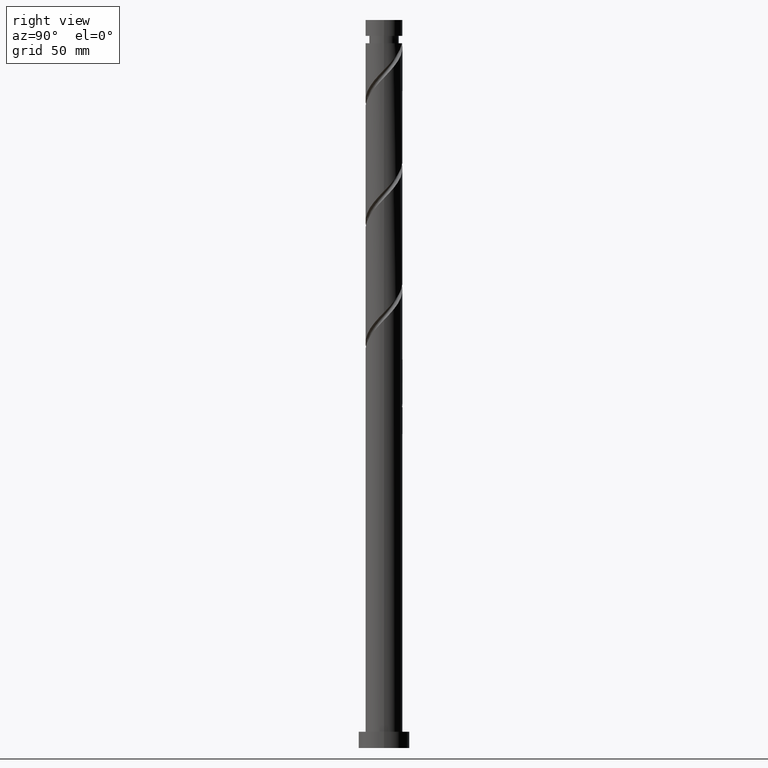
[diagram: clean part render]
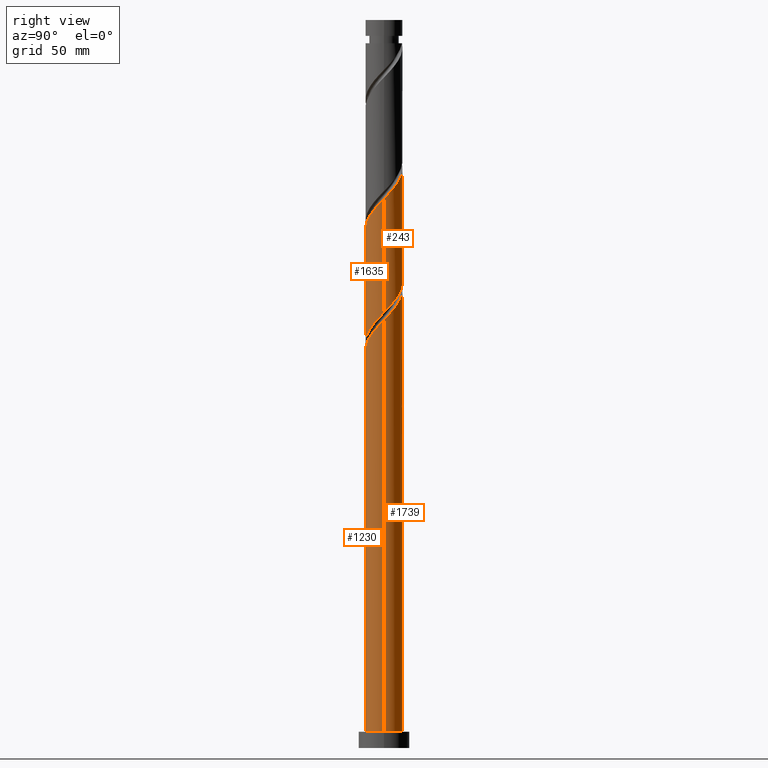
[diagram: same view with one multi-face feature highlighted, each face labeled with its STEP entity id]
A machine part, right view. The highlighted faces form ONE feature: a constant-radius fillet chain: 4 tangent blend faces with common blend radius 8 mm. The faces share edges in the B-rep.
Their STEP definitions:
[1] entity #1739 (Cylinder):
#6 = CARTESIAN_POINT ( 'NONE',  ( 7.840000000000014069, 1.591979899370592921, 186.8362030128767515 ) ) ;
#52 = CARTESIAN_POINT ( 'NONE',  ( -3.296629761746310283, 7.289185977457886878, 149.3362030128767799 ) ) ;
#70 = CYLINDRICAL_SURFACE ( 'NONE', #1546, 8.000000000000000000 ) ;
#84 = CARTESIAN_POINT ( 'NONE',  ( -7.660626944476033096, 2.475335748187463381, 159.6487030128768083 ) ) ;
#123 = CARTESIAN_POINT ( 'NONE',  ( -2.475335748187466933, 7.660626944476047306, 200.8987030128768083 ) ) ;
#126 = ORIENTED_EDGE ( 'NONE', *, *, #553, .F. ) ;
#133 = CARTESIAN_POINT ( 'NONE',  ( 8.000000000000012434, -2.358272216401145902E-15, 185.1616859349707056 ) ) ;
#164 = CARTESIAN_POINT ( 'NONE',  ( -6.711618193336564175, 4.445972725462997488, 154.0237030128768083 ) ) ;
#190 = CARTESIAN_POINT ( 'NONE',  ( -5.554021909376833932, 5.827978455592415230, 152.1487030128767515 ) ) ;
#206 = CARTESIAN_POINT ( 'NONE',  ( -7.289185977457873555, 3.296629761746308063, 158.7112030128767799 ) ) ;
#215 = LINE ( 'NONE', #1123, #1804 ) ;
#250 = CARTESIAN_POINT ( 'NONE',  ( -3.643500041788255039, 7.122142054571012793, 153.0862030128768083 ) ) ;
#263 = CARTESIAN_POINT ( 'NONE',  ( -8.000000000000012434, 0.09626317733113058661, 211.3113232467456726 ) ) ;
#304 = CARTESIAN_POINT ( 'NONE',  ( 0.000000000000000000, 0.000000000000000000, 7.000000000000000000 ) ) ;
#305 = CARTESIAN_POINT ( 'NONE',  ( -8.000000000000012434, 1.149284561157520631E-15, 158.9116859349707340 ) ) ;
#310 = CARTESIAN_POINT ( 'NONE',  ( 8.000000000000000000, 9.797174393178825657E-16, 7.000000000000000000 ) ) ;
#330 = CARTESIAN_POINT ( 'NONE',  ( 0.000000000000000000, 0.000000000000000000, 147.4612030128767799 ) ) ;
#341 = DIRECTION ( 'NONE',  ( 0.000000000000000000, -0.000000000000000000, -1.000000000000000000 ) ) ;
#345 = EDGE_CURVE ( 'NONE', #1927, #983, #1616, .T. ) ;
#346 = CARTESIAN_POINT ( 'NONE',  ( -7.122142054571021674, 3.643500041788263033, 154.9612030128767799 ) ) ;
#413 = CARTESIAN_POINT ( 'NONE',  ( -0.7086240505537212409, 8.019373055523983496, 199.0237030128768652 ) ) ;
#445 = CARTESIAN_POINT ( 'NONE',  ( 2.841027358113531243, 7.532665915805483614, 195.2737030128768652 ) ) ;
#451 = EDGE_CURVE ( 'NONE', #1294, #1927, #215, .T. ) ;
#454 = CARTESIAN_POINT ( 'NONE',  ( 6.372861733016071284, 4.835972842340993338, 190.5862030128767231 ) ) ;
#466 = CARTESIAN_POINT ( 'NONE',  ( -7.975994315582289218, 1.093621015931131701, 157.7737030128768367 ) ) ;
#475 = CARTESIAN_POINT ( 'NONE',  ( -7.754330115693886860, 1.967324187022329918, 156.8362030128767231 ) ) ;
#510 = CARTESIAN_POINT ( 'NONE',  ( 0.000000000000000000, 0.000000000000000000, 315.0000000000000000 ) ) ;
#526 = CARTESIAN_POINT ( 'NONE',  ( -7.999999999999998224, 0.8040302522073711211, 161.4224490118191397 ) ) ;
#546 = LINE ( 'NONE', #1290, #874 ) ;
#553 = EDGE_CURVE ( 'NONE', #1450, #1671, #1539, .T. ) ;
#563 = CARTESIAN_POINT ( 'NONE',  ( -7.532665915805484502, 2.841027358113529466, 208.3987030128768652 ) ) ;
#584 = CARTESIAN_POINT ( 'NONE',  ( -3.296629761746310283, 7.289185977457886878, 201.8362030128767799 ) ) ;
#606 = CARTESIAN_POINT ( 'NONE',  ( 7.660626944476047306, 2.475335748187466489, 187.7737030128768367 ) ) ;
#626 = EDGE_CURVE ( 'NONE', #1054, #1450, #546, .T. ) ;
#627 = CARTESIAN_POINT ( 'NONE',  ( -4.835972842340994227, 6.372861733016071284, 151.2112030128767515 ) ) ;
#628 = VERTEX_POINT ( 'NONE', #1709 ) ;
#630 = CARTESIAN_POINT ( 'NONE',  ( 8.000000000000012434, -2.358272216401145902E-15, 185.1616859349706772 ) ) ;
#651 = CARTESIAN_POINT ( 'NONE',  ( -4.117923775305157186, 6.917745010439727338, 150.2737030128768083 ) ) ;
#680 = ORIENTED_EDGE ( 'NONE', *, *, #1423, .T. ) ;
#687 = DIRECTION ( 'NONE',  ( 0.000000000000000000, 0.000000000000000000, 1.000000000000000000 ) ) ;
#699 = CARTESIAN_POINT ( 'NONE',  ( 1.591979899370595142, 7.839999999999999858, 147.4612030128767799 ) ) ;
#714 = CARTESIAN_POINT ( 'NONE',  ( 7.289185977457886878, 3.296629761746309839, 188.7112030128767515 ) ) ;
#722 = EDGE_LOOP ( 'NONE', ( #1632, #1613, #750, #1263, #997, #680, #126, #1158 ) ) ;
#727 = CARTESIAN_POINT ( 'NONE',  ( -8.000000000000012434, 1.149284561157520631E-15, 211.4116859349707624 ) ) ;
#730 = VERTEX_POINT ( 'NONE', #305 ) ;
#750 = ORIENTED_EDGE ( 'NONE', *, *, #345, .T. ) ;
#811 = CARTESIAN_POINT ( 'NONE',  ( 1.591979899370595364, 7.839999999999999858, 147.4612030128767799 ) ) ;
#819 = DIRECTION ( 'NONE',  ( -0.000000000000000000, -0.000000000000000000, -1.000000000000000000 ) ) ;
#858 = CARTESIAN_POINT ( 'NONE',  ( -5.554021909376833932, 5.827978455592415230, 204.6487030128767799 ) ) ;
#874 = VECTOR ( 'NONE', #1104, 1000.000000000000000 ) ;
#883 = CARTESIAN_POINT ( 'NONE',  ( 1.093621015931133478, 7.975994315582287442, 197.1487030128768083 ) ) ;
#907 = CIRCLE ( 'NONE', #1521, 8.000000000000000000 ) ;
#928 = CARTESIAN_POINT ( 'NONE',  ( -7.999999999999998224, 9.403237318561601103E-16, 162.2607200907828258 ) ) ;
#935 = CARTESIAN_POINT ( 'NONE',  ( -7.532665915805484502, 2.841027358113529466, 155.8987030128768367 ) ) ;
#946 = DIRECTION ( 'NONE',  ( -1.000000000000000000, 0.000000000000000000, 0.000000000000000000 ) ) ;
#956 = CARTESIAN_POINT ( 'NONE',  ( -8.000000000000000000, 0.000000000000000000, 315.0000000000000000 ) ) ;
#972 = CARTESIAN_POINT ( 'NONE',  ( -6.372861733016058849, 4.835972842340985345, 156.8362030128767515 ) ) ;
#980 = CARTESIAN_POINT ( 'NONE',  ( -4.445972725462987718, 6.711618193336553517, 154.0237030128767799 ) ) ;
#983 = VERTEX_POINT ( 'NONE', #1406 ) ;
#997 = ORIENTED_EDGE ( 'NONE', *, *, #1895, .F. ) ;
#1000 = CARTESIAN_POINT ( 'NONE',  ( -7.839999999999999858, 1.591979899370594032, 160.5862030128767799 ) ) ;
#1012 = CARTESIAN_POINT ( 'NONE',  ( -7.997683685553133692, 0.1924984826887045641, 211.2112030128768083 ) ) ;
#1022 = CARTESIAN_POINT ( 'NONE',  ( 3.643500041788264809, 7.122142054571020786, 194.3362030128767799 ) ) ;
#1033 = CARTESIAN_POINT ( 'NONE',  ( 6.917745010439728226, 4.117923775305155409, 189.6487030128768083 ) ) ;
#1043 = CARTESIAN_POINT ( 'NONE',  ( 0.1924984826887064515, 7.997683685553133692, 198.0862030128768083 ) ) ;
#1054 = VERTEX_POINT ( 'NONE', #1258 ) ;
#1068 = CARTESIAN_POINT ( 'NONE',  ( -1.591979899370592921, 7.840000000000014957, 147.4612030128768083 ) ) ;
#1074 =( BOUNDED_CURVE ( )  B_SPLINE_CURVE ( 2, ( #133, #1305, #6, #606, #714, #1033, #454, #1477, #1204, #1619, #1022, #445, #1456, #883, #1043, #413, #1639, #123, #584, #1793, #1785, #858, #1924, #1195, #1891, #563, #1162, #1748, #1012, #263, #727 ),
 .UNSPECIFIED., .F., .T. ) 
 B_SPLINE_CURVE_WITH_KNOTS ( ( 3, 2, 2, 2, 2, 2, 2, 2, 2, 2, 2, 2, 2, 2, 2, 3 ),
 ( 0.1795303401299220003, 0.1875000000000000000, 0.1964285714285713969, 0.2053571428571429047, 0.2142857142857143016, 0.2232142857142856984, 0.2321428571428570953, 0.2410714285714286031, 0.2500000000000000000, 0.2589285714285713969, 0.2678571428571429047, 0.2767857142857143016, 0.2857142857142856984, 0.2946428571428570953, 0.3035714285714286031, 0.3045303401299220281 ),
 .UNSPECIFIED. ) 
 CURVE ( )  GEOMETRIC_REPRESENTATION_ITEM ( )  RATIONAL_B_SPLINE_CURVE ( ( 0.9079949616361984166, 0.9039886423360613543, 0.9090909090909282675, 0.9033747362666031400, 0.9090909090909282675, 0.9033747362666031400, 0.9090909090909282675, 0.9033747362666031400, 0.9090909090909282675, 0.9033747362666031400, 0.9090909090909282675, 0.9033747362666031400, 0.9090909090909282675, 0.9033747362666031400, 0.9090909090909282675, 0.9033747362666031400, 0.9090909090909282675, 0.9033747362666031400, 0.9090909090909282675, 0.9033747362666031400, 0.9090909090909282675, 0.9033747362666031400, 0.9090909090909282675, 0.9033747362666031400, 0.9090909090909282675, 0.9033747362666031400, 0.9090909090909282675, 0.9033747362666031400, 0.9090909090909282675, 0.9084770030214700531, 0.9079949616361984166 ) ) 
 REPRESENTATION_ITEM ( '' )  );
#1076 = CARTESIAN_POINT ( 'NONE',  ( -8.000000000000012434, 1.149284561157520631E-15, 158.9116859349707340 ) ) ;
#1088 =( BOUNDED_CURVE ( )  B_SPLINE_CURVE ( 2, ( #1068, #1803, #52, #651, #627, #190, #1221, #164, #346, #935, #475, #466, #1668, #1245, #1076 ),
 .UNSPECIFIED., .F., .T. ) 
 B_SPLINE_CURVE_WITH_KNOTS ( ( 3, 2, 2, 2, 2, 2, 2, 3 ),
 ( 0.000000000000000000, 0.008928571428571396851, 0.01785714285714290472, 0.02678571428571430157, 0.03571428571428569843, 0.04464285714285709528, 0.05357142857142860315, 0.05453034012992200724 ),
 .UNSPECIFIED. ) 
 CURVE ( )  GEOMETRIC_REPRESENTATION_ITEM ( )  RATIONAL_B_SPLINE_CURVE ( ( 0.9090909090909282675, 0.9033747362666031400, 0.9090909090909282675, 0.9033747362666031400, 0.9090909090909282675, 0.9033747362666031400, 0.9090909090909282675, 0.9033747362666031400, 0.9090909090909282675, 0.9033747362666031400, 0.9090909090909282675, 0.9033747362666031400, 0.9090909090909282675, 0.9084770030214700531, 0.9079949616361984166 ) ) 
 REPRESENTATION_ITEM ( '' )  );
#1104 = DIRECTION ( 'NONE',  ( -0.000000000000000000, -0.000000000000000000, -1.000000000000000000 ) ) ;
#1123 = CARTESIAN_POINT ( 'NONE',  ( 8.000000000000000000, 9.797174393178825657E-16, 315.0000000000000000 ) ) ;
#1150 = FACE_OUTER_BOUND ( 'NONE', #722, .T. ) ;
#1154 = EDGE_CURVE ( 'NONE', #730, #983, #1399, .T. ) ;
#1158 = ORIENTED_EDGE ( 'NONE', *, *, #626, .F. ) ;
#1162 = CARTESIAN_POINT ( 'NONE',  ( -7.754330115693886860, 1.967324187022329918, 209.3362030128767799 ) ) ;
#1195 = CARTESIAN_POINT ( 'NONE',  ( -6.711618193336564175, 4.445972725462997488, 206.5237030128768083 ) ) ;
#1204 = CARTESIAN_POINT ( 'NONE',  ( 5.136975590527707247, 6.132820051356694613, 192.4612030128768083 ) ) ;
#1221 = CARTESIAN_POINT ( 'NONE',  ( -6.132820051356695501, 5.136975590527704583, 153.0862030128767515 ) ) ;
#1245 = CARTESIAN_POINT ( 'NONE',  ( -8.000000000000012434, 0.09626317733113266828, 158.8113232467456442 ) ) ;
#1252 = CARTESIAN_POINT ( 'NONE',  ( -1.967324187022325033, 7.754330115693874426, 151.2112030128767515 ) ) ;
#1258 = CARTESIAN_POINT ( 'NONE',  ( -8.000000000000012434, 1.149284561157520631E-15, 211.4116859349707624 ) ) ;
#1260 = CARTESIAN_POINT ( 'NONE',  ( -7.999999999999998224, 9.403237318561601103E-16, 162.2607200907828258 ) ) ;
#1263 = ORIENTED_EDGE ( 'NONE', *, *, #1154, .F. ) ;
#1268 = DIRECTION ( 'NONE',  ( -0.000000000000000000, -0.000000000000000000, -1.000000000000000000 ) ) ;
#1278 = DIRECTION ( 'NONE',  ( 1.000000000000000000, 0.000000000000000000, 0.000000000000000000 ) ) ;
#1290 = CARTESIAN_POINT ( 'NONE',  ( -8.000000000000000000, 0.000000000000000000, 315.0000000000000000 ) ) ;
#1294 = VERTEX_POINT ( 'NONE', #630 ) ;
#1305 = CARTESIAN_POINT ( 'NONE',  ( 8.000000000000015987, 0.8040302522073611291, 185.9999570139342779 ) ) ;
#1393 = DIRECTION ( 'NONE',  ( -0.000000000000000000, -0.000000000000000000, -1.000000000000000000 ) ) ;
#1399 = LINE ( 'NONE', #956, #1831 ) ;
#1401 = CARTESIAN_POINT ( 'NONE',  ( -1.093621015931128593, 7.975994315582275007, 150.2737030128767231 ) ) ;
#1406 = CARTESIAN_POINT ( 'NONE',  ( -8.000000000000000000, 0.000000000000000000, 7.000000000000000000 ) ) ;
#1423 = EDGE_CURVE ( 'NONE', #628, #1671, #907, .T. ) ;
#1450 = VERTEX_POINT ( 'NONE', #928 ) ;
#1456 = CARTESIAN_POINT ( 'NONE',  ( 1.967324187022331472, 7.754330115693885972, 196.2112030128767231 ) ) ;
#1477 = CARTESIAN_POINT ( 'NONE',  ( 5.827978455592415230, 5.554021909376833044, 191.5237030128768367 ) ) ;
#1521 = AXIS2_PLACEMENT_3D ( 'NONE', #330, #341, #946 ) ;
#1539 =( BOUNDED_CURVE ( )  B_SPLINE_CURVE ( 2, ( #1260, #526, #1000, #84, #206, #1566, #972, #1556, #1869, #980, #250, #1549, #1252, #1401, #1724, #1877, #699 ),
 .UNSPECIFIED., .F., .T. ) 
 B_SPLINE_CURVE_WITH_KNOTS ( ( 3, 2, 2, 2, 2, 2, 2, 2, 3 ),
 ( 0.9295303401299220836, 0.9375000000000000000, 0.9464285714285713969, 0.9553571428571429047, 0.9642857142857143016, 0.9732142857142856984, 0.9821428571428570953, 0.9910714285714286031, 1.000000000000000000 ),
 .UNSPECIFIED. ) 
 CURVE ( )  GEOMETRIC_REPRESENTATION_ITEM ( )  RATIONAL_B_SPLINE_CURVE ( ( 0.9079949616361917553, 0.9039886423360551371, 0.9090909090909216062, 0.9033747362665968117, 0.9090909090909216062, 0.9033747362665968117, 0.9090909090909216062, 0.9033747362665968117, 0.9090909090909216062, 0.9033747362665968117, 0.9090909090909216062, 0.9033747362665968117, 0.9090909090909216062, 0.9033747362665968117, 0.9090909090909216062, 0.9033747362665968117, 0.9090909090909216062 ) ) 
 REPRESENTATION_ITEM ( '' )  );
#1544 = AXIS2_PLACEMENT_3D ( 'NONE', #304, #687, #1278 ) ;
#1546 = AXIS2_PLACEMENT_3D ( 'NONE', #510, #819, #1738 ) ;
#1549 = CARTESIAN_POINT ( 'NONE',  ( -2.841027358113523249, 7.532665915805472956, 152.1487030128767515 ) ) ;
#1556 = CARTESIAN_POINT ( 'NONE',  ( -5.827978455592403684, 5.554021909376822386, 155.8987030128767515 ) ) ;
#1566 = CARTESIAN_POINT ( 'NONE',  ( -6.917745010439714903, 4.117923775305150080, 157.7737030128767799 ) ) ;
#1613 = ORIENTED_EDGE ( 'NONE', *, *, #451, .T. ) ;
#1616 = CIRCLE ( 'NONE', #1544, 8.000000000000000000 ) ;
#1619 = CARTESIAN_POINT ( 'NONE',  ( 4.445972725462998376, 6.711618193336562399, 193.3987030128767799 ) ) ;
#1632 = ORIENTED_EDGE ( 'NONE', *, *, #1832, .F. ) ;
#1639 = CARTESIAN_POINT ( 'NONE',  ( -1.591979899370592477, 7.840000000000014069, 199.9612030128768367 ) ) ;
#1668 = CARTESIAN_POINT ( 'NONE',  ( -7.997683685553133692, 0.1924984826887045641, 158.7112030128767799 ) ) ;
#1671 = VERTEX_POINT ( 'NONE', #811 ) ;
#1709 = CARTESIAN_POINT ( 'NONE',  ( -1.591979899370592921, 7.840000000000014957, 147.4612030128767799 ) ) ;
#1724 = CARTESIAN_POINT ( 'NONE',  ( -0.1924984826887025380, 7.997683685553119481, 149.3362030128767799 ) ) ;
#1738 = DIRECTION ( 'NONE',  ( -1.000000000000000000, 0.000000000000000000, 0.000000000000000000 ) ) ;
#1739 = ADVANCED_FACE ( 'NONE', ( #1150 ), #70, .T. ) ;
#1748 = CARTESIAN_POINT ( 'NONE',  ( -7.975994315582289218, 1.093621015931131701, 210.2737030128768083 ) ) ;
#1785 = CARTESIAN_POINT ( 'NONE',  ( -4.835972842340994227, 6.372861733016071284, 203.7112030128767799 ) ) ;
#1793 = CARTESIAN_POINT ( 'NONE',  ( -4.117923775305157186, 6.917745010439727338, 202.7737030128768367 ) ) ;
#1803 = CARTESIAN_POINT ( 'NONE',  ( -2.475335748187466933, 7.660626944476047306, 148.3987030128768367 ) ) ;
#1804 = VECTOR ( 'NONE', #1268, 1000.000000000000000 ) ;
#1831 = VECTOR ( 'NONE', #1393, 1000.000000000000000 ) ;
#1832 = EDGE_CURVE ( 'NONE', #1294, #1054, #1074, .T. ) ;
#1869 = CARTESIAN_POINT ( 'NONE',  ( -5.136975590527696589, 6.132820051356686619, 154.9612030128767515 ) ) ;
#1877 = CARTESIAN_POINT ( 'NONE',  ( 0.7086240505537230172, 8.019373055523969285, 148.3987030128767799 ) ) ;
#1891 = CARTESIAN_POINT ( 'NONE',  ( -7.122142054571021674, 3.643500041788263033, 207.4612030128767799 ) ) ;
#1895 = EDGE_CURVE ( 'NONE', #628, #730, #1088, .T. ) ;
#1924 = CARTESIAN_POINT ( 'NONE',  ( -6.132820051356695501, 5.136975590527704583, 205.5862030128768367 ) ) ;
#1927 = VERTEX_POINT ( 'NONE', #310 ) ;
[2] entity #1230 (Cylinder):
#58 = CARTESIAN_POINT ( 'NONE',  ( -7.289185977457886878, -3.296629761746310283, 162.4612030128768083 ) ) ;
#64 = CARTESIAN_POINT ( 'NONE',  ( -7.840000000000014069, -1.591979899370594254, 160.5862030128767515 ) ) ;
#165 = ORIENTED_EDGE ( 'NONE', *, *, #451, .F. ) ;
#215 = LINE ( 'NONE', #1123, #1804 ) ;
#223 = CARTESIAN_POINT ( 'NONE',  ( -3.643500041788263033, -7.122142054571020786, 168.0862030128768083 ) ) ;
#282 = CARTESIAN_POINT ( 'NONE',  ( 7.997683685553133692, -0.1924984826887058409, 184.9612030128767515 ) ) ;
#305 = CARTESIAN_POINT ( 'NONE',  ( -8.000000000000012434, 1.149284561157520631E-15, 158.9116859349707340 ) ) ;
#310 = CARTESIAN_POINT ( 'NONE',  ( 8.000000000000000000, 9.797174393178825657E-16, 7.000000000000000000 ) ) ;
#364 = AXIS2_PLACEMENT_3D ( 'NONE', #1180, #1156, #431 ) ;
#372 = ORIENTED_EDGE ( 'NONE', *, *, #1154, .T. ) ;
#376 = CARTESIAN_POINT ( 'NONE',  ( -5.827978455592415230, -5.554021909376833044, 165.2737030128768367 ) ) ;
#427 = CARTESIAN_POINT ( 'NONE',  ( 8.000000000000012434, -2.358272216401145902E-15, 185.1616859349707056 ) ) ;
#431 = DIRECTION ( 'NONE',  ( 1.000000000000000000, 0.000000000000000000, 0.000000000000000000 ) ) ;
#438 = CARTESIAN_POINT ( 'NONE',  ( 7.754330115693885972, -1.967324187022330584, 183.0862030128767515 ) ) ;
#451 = EDGE_CURVE ( 'NONE', #1294, #1927, #215, .T. ) ;
#480 =( BOUNDED_CURVE ( )  B_SPLINE_CURVE ( 2, ( #1715, #1266, #64, #512, #58, #658, #1276, #376, #978, #1109, #223, #1417, #685, #533, #1132, #1027, #1440, #1189, #1311, #1178, #1038, #557, #1778, #1330, #1894, #1633, #438, #1916, #282, #709, #427 ),
 .UNSPECIFIED., .F., .T. ) 
 B_SPLINE_CURVE_WITH_KNOTS ( ( 3, 2, 2, 2, 2, 2, 2, 2, 2, 2, 2, 2, 2, 2, 2, 3 ),
 ( 0.05453034012992200724, 0.06250000000000000000, 0.07142857142857139685, 0.08035714285714290472, 0.08928571428571430157, 0.09821428571428569843, 0.1071428571428570953, 0.1160714285714286031, 0.1250000000000000000, 0.1339285714285713969, 0.1428571428571429047, 0.1517857142857143016, 0.1607142857142856984, 0.1696428571428570953, 0.1785714285714286031, 0.1795303401299220003 ),
 .UNSPECIFIED. ) 
 CURVE ( )  GEOMETRIC_REPRESENTATION_ITEM ( )  RATIONAL_B_SPLINE_CURVE ( ( 0.9079949616361984166, 0.9039886423360613543, 0.9090909090909282675, 0.9033747362666031400, 0.9090909090909282675, 0.9033747362666031400, 0.9090909090909282675, 0.9033747362666031400, 0.9090909090909282675, 0.9033747362666031400, 0.9090909090909282675, 0.9033747362666031400, 0.9090909090909282675, 0.9033747362666031400, 0.9090909090909282675, 0.9033747362666031400, 0.9090909090909282675, 0.9033747362666031400, 0.9090909090909282675, 0.9033747362666031400, 0.9090909090909282675, 0.9033747362666031400, 0.9090909090909282675, 0.9033747362666031400, 0.9090909090909282675, 0.9033747362666031400, 0.9090909090909282675, 0.9033747362666031400, 0.9090909090909282675, 0.9084770030214700531, 0.9079949616361984166 ) ) 
 REPRESENTATION_ITEM ( '' )  );
#512 = CARTESIAN_POINT ( 'NONE',  ( -7.660626944476047306, -2.475335748187466489, 161.5237030128767799 ) ) ;
#533 = CARTESIAN_POINT ( 'NONE',  ( -1.093621015931132368, -7.975994315582289218, 170.8987030128768367 ) ) ;
#557 = CARTESIAN_POINT ( 'NONE',  ( 5.554021909376833044, -5.827978455592415230, 178.3987030128768367 ) ) ;
#630 = CARTESIAN_POINT ( 'NONE',  ( 8.000000000000012434, -2.358272216401145902E-15, 185.1616859349706772 ) ) ;
#648 = EDGE_CURVE ( 'NONE', #983, #1927, #781, .T. ) ;
#658 = CARTESIAN_POINT ( 'NONE',  ( -6.917745010439728226, -4.117923775305156298, 163.3987030128768083 ) ) ;
#685 = CARTESIAN_POINT ( 'NONE',  ( -1.967324187022330584, -7.754330115693885972, 169.9612030128767799 ) ) ;
#709 = CARTESIAN_POINT ( 'NONE',  ( 8.000000000000012434, -0.09626317733113461117, 185.0613232467455589 ) ) ;
#730 = VERTEX_POINT ( 'NONE', #305 ) ;
#751 = CYLINDRICAL_SURFACE ( 'NONE', #1243, 8.000000000000000000 ) ;
#781 = CIRCLE ( 'NONE', #364, 8.000000000000000000 ) ;
#956 = CARTESIAN_POINT ( 'NONE',  ( -8.000000000000000000, 0.000000000000000000, 315.0000000000000000 ) ) ;
#978 = CARTESIAN_POINT ( 'NONE',  ( -5.136975590527707247, -6.132820051356696389, 166.2112030128767799 ) ) ;
#983 = VERTEX_POINT ( 'NONE', #1406 ) ;
#1006 = ORIENTED_EDGE ( 'NONE', *, *, #648, .T. ) ;
#1027 = CARTESIAN_POINT ( 'NONE',  ( 0.7086240505537216849, -8.019373055523983496, 172.7737030128767799 ) ) ;
#1038 = CARTESIAN_POINT ( 'NONE',  ( 4.835972842340994227, -6.372861733016071284, 177.4612030128767515 ) ) ;
#1109 = CARTESIAN_POINT ( 'NONE',  ( -4.445972725462997488, -6.711618193336562399, 167.1487030128767799 ) ) ;
#1123 = CARTESIAN_POINT ( 'NONE',  ( 8.000000000000000000, 9.797174393178825657E-16, 315.0000000000000000 ) ) ;
#1132 = CARTESIAN_POINT ( 'NONE',  ( -0.1924984826887049527, -7.997683685553133692, 171.8362030128768083 ) ) ;
#1154 = EDGE_CURVE ( 'NONE', #730, #983, #1399, .T. ) ;
#1156 = DIRECTION ( 'NONE',  ( 0.000000000000000000, 0.000000000000000000, 1.000000000000000000 ) ) ;
#1159 = EDGE_CURVE ( 'NONE', #730, #1294, #480, .T. ) ;
#1176 = ORIENTED_EDGE ( 'NONE', *, *, #1159, .F. ) ;
#1178 = CARTESIAN_POINT ( 'NONE',  ( 4.117923775305156298, -6.917745010439728226, 176.5237030128767515 ) ) ;
#1180 = CARTESIAN_POINT ( 'NONE',  ( 0.000000000000000000, 0.000000000000000000, 7.000000000000000000 ) ) ;
#1188 = EDGE_LOOP ( 'NONE', ( #165, #1176, #372, #1006 ) ) ;
#1189 = CARTESIAN_POINT ( 'NONE',  ( 2.475335748187466489, -7.660626944476047306, 174.6487030128768652 ) ) ;
#1230 = ADVANCED_FACE ( 'NONE', ( #1481 ), #751, .T. ) ;
#1243 = AXIS2_PLACEMENT_3D ( 'NONE', #1752, #1764, #1344 ) ;
#1266 = CARTESIAN_POINT ( 'NONE',  ( -8.000000000000015987, -0.8040302522073629055, 159.7499570139343632 ) ) ;
#1268 = DIRECTION ( 'NONE',  ( -0.000000000000000000, -0.000000000000000000, -1.000000000000000000 ) ) ;
#1276 = CARTESIAN_POINT ( 'NONE',  ( -6.372861733016071284, -4.835972842340994227, 164.3362030128768367 ) ) ;
#1294 = VERTEX_POINT ( 'NONE', #630 ) ;
#1311 = CARTESIAN_POINT ( 'NONE',  ( 3.296629761746309839, -7.289185977457886878, 175.5862030128768083 ) ) ;
#1330 = CARTESIAN_POINT ( 'NONE',  ( 6.711618193336562399, -4.445972725462997488, 180.2737030128767515 ) ) ;
#1344 = DIRECTION ( 'NONE',  ( -1.000000000000000000, 0.000000000000000000, 0.000000000000000000 ) ) ;
#1393 = DIRECTION ( 'NONE',  ( -0.000000000000000000, -0.000000000000000000, -1.000000000000000000 ) ) ;
#1399 = LINE ( 'NONE', #956, #1831 ) ;
#1406 = CARTESIAN_POINT ( 'NONE',  ( -8.000000000000000000, 0.000000000000000000, 7.000000000000000000 ) ) ;
#1417 = CARTESIAN_POINT ( 'NONE',  ( -2.841027358113530354, -7.532665915805484502, 169.0237030128768652 ) ) ;
#1440 = CARTESIAN_POINT ( 'NONE',  ( 1.591979899370593365, -7.840000000000014069, 173.7112030128767231 ) ) ;
#1481 = FACE_OUTER_BOUND ( 'NONE', #1188, .T. ) ;
#1633 = CARTESIAN_POINT ( 'NONE',  ( 7.532665915805484502, -2.841027358113530354, 182.1487030128768367 ) ) ;
#1715 = CARTESIAN_POINT ( 'NONE',  ( -8.000000000000012434, 1.149284561157520631E-15, 158.9116859349707340 ) ) ;
#1752 = CARTESIAN_POINT ( 'NONE',  ( 0.000000000000000000, 0.000000000000000000, 315.0000000000000000 ) ) ;
#1764 = DIRECTION ( 'NONE',  ( -0.000000000000000000, -0.000000000000000000, -1.000000000000000000 ) ) ;
#1778 = CARTESIAN_POINT ( 'NONE',  ( 6.132820051356694613, -5.136975590527707247, 179.3362030128768083 ) ) ;
#1804 = VECTOR ( 'NONE', #1268, 1000.000000000000000 ) ;
#1831 = VECTOR ( 'NONE', #1393, 1000.000000000000000 ) ;
#1894 = CARTESIAN_POINT ( 'NONE',  ( 7.122142054571020786, -3.643500041788264809, 181.2112030128767799 ) ) ;
#1916 = CARTESIAN_POINT ( 'NONE',  ( 7.975994315582287442, -1.093621015931133034, 184.0237030128768083 ) ) ;
#1927 = VERTEX_POINT ( 'NONE', #310 ) ;
[3] entity #1635 (Cylinder):
#13 = CARTESIAN_POINT ( 'NONE',  ( 6.132820051356694613, -5.136975590527707247, 231.8362030128767799 ) ) ;
#14 = CARTESIAN_POINT ( 'NONE',  ( 7.999999999999998224, -1.865721690190793863E-15, 188.5107200907828826 ) ) ;
#19 = CARTESIAN_POINT ( 'NONE',  ( -0.7086240505537237944, -8.019373055523969285, 174.6487030128768083 ) ) ;
#24 = CARTESIAN_POINT ( 'NONE',  ( -8.000000000000015987, -0.8040302522073650149, 212.2499570139343348 ) ) ;
#27 = CARTESIAN_POINT ( 'NONE',  ( -1.591979899370594476, -7.839999999999999858, 173.7112030128767515 ) ) ;
#37 = ORIENTED_EDGE ( 'NONE', *, *, #477, .F. ) ;
#40 = CARTESIAN_POINT ( 'NONE',  ( -7.660626944476047306, -2.475335748187466489, 214.0237030128767799 ) ) ;
#50 = CARTESIAN_POINT ( 'NONE',  ( -5.827978455592415230, -5.554021909376833044, 217.7737030128768367 ) ) ;
#66 = CARTESIAN_POINT ( 'NONE',  ( -8.000000000000000000, -0.09626317733112278729, 162.3610827790079441 ) ) ;
#67 = LINE ( 'NONE', #379, #1149 ) ;
#68 = CARTESIAN_POINT ( 'NONE',  ( -7.975994315582275007, -1.093621015931127483, 163.3987030128767799 ) ) ;
#85 =( BOUNDED_CURVE ( )  B_SPLINE_CURVE ( 2, ( #188, #24, #1496, #40, #472, #1816, #794, #50, #335, #1384, #649, #1800, #786, #1659, #1833, #924, #1082, #161, #1522, #930, #763, #1357, #13, #613, #917, #1210, #461, #1065, #1508, #481, #1058 ),
 .UNSPECIFIED., .F., .T. ) 
 B_SPLINE_CURVE_WITH_KNOTS ( ( 3, 2, 2, 2, 2, 2, 2, 2, 2, 2, 2, 2, 2, 2, 2, 3 ),
 ( 0.3045303401299220281, 0.3125000000000000000, 0.3214285714285713969, 0.3303571428571429047, 0.3392857142857143016, 0.3482142857142856984, 0.3571428571428570953, 0.3660714285714286031, 0.3750000000000000000, 0.3839285714285713969, 0.3928571428571429047, 0.4017857142857143016, 0.4107142857142856984, 0.4196428571428570953, 0.4285714285714286031, 0.4295303401299222501 ),
 .UNSPECIFIED. ) 
 CURVE ( )  GEOMETRIC_REPRESENTATION_ITEM ( )  RATIONAL_B_SPLINE_CURVE ( ( 0.9079949616361984166, 0.9039886423360613543, 0.9090909090909282675, 0.9033747362666031400, 0.9090909090909282675, 0.9033747362666031400, 0.9090909090909282675, 0.9033747362666031400, 0.9090909090909282675, 0.9033747362666031400, 0.9090909090909282675, 0.9033747362666031400, 0.9090909090909282675, 0.9033747362666031400, 0.9090909090909282675, 0.9033747362666031400, 0.9090909090909282675, 0.9033747362666031400, 0.9090909090909282675, 0.9033747362666031400, 0.9090909090909282675, 0.9033747362666031400, 0.9090909090909282675, 0.9033747362666031400, 0.9090909090909282675, 0.9033747362666031400, 0.9090909090909282675, 0.9033747362666031400, 0.9090909090909282675, 0.9084770030214699421, 0.9079949616361981946 ) ) 
 REPRESENTATION_ITEM ( '' )  );
#156 = EDGE_CURVE ( 'NONE', #426, #1450, #1147, .T. ) ;
#161 = CARTESIAN_POINT ( 'NONE',  ( 2.475335748187466489, -7.660626944476047306, 227.1487030128768367 ) ) ;
#188 = CARTESIAN_POINT ( 'NONE',  ( -8.000000000000012434, 1.149284561157520631E-15, 211.4116859349707624 ) ) ;
#191 = CARTESIAN_POINT ( 'NONE',  ( -2.475335748187464269, -7.660626944476033096, 172.7737030128767515 ) ) ;
#207 = CARTESIAN_POINT ( 'NONE',  ( -7.754330115693874426, -1.967324187022324145, 164.3362030128768083 ) ) ;
#216 = CARTESIAN_POINT ( 'NONE',  ( -6.132820051356686619, -5.136975590527694813, 168.0862030128767799 ) ) ;
#308 = AXIS2_PLACEMENT_3D ( 'NONE', #1437, #1880, #530 ) ;
#335 = CARTESIAN_POINT ( 'NONE',  ( -5.136975590527707247, -6.132820051356696389, 218.7112030128767515 ) ) ;
#379 = CARTESIAN_POINT ( 'NONE',  ( 8.000000000000000000, 9.797174393178825657E-16, 315.0000000000000000 ) ) ;
#416 = ORIENTED_EDGE ( 'NONE', *, *, #626, .T. ) ;
#426 = VERTEX_POINT ( 'NONE', #14 ) ;
#461 = CARTESIAN_POINT ( 'NONE',  ( 7.754330115693885972, -1.967324187022330584, 235.5862030128768367 ) ) ;
#468 = CARTESIAN_POINT ( 'NONE',  ( 0.1924984826887017053, -7.997683685553119481, 175.5862030128767515 ) ) ;
#472 = CARTESIAN_POINT ( 'NONE',  ( -7.289185977457886878, -3.296629761746310283, 214.9612030128767515 ) ) ;
#477 = EDGE_CURVE ( 'NONE', #1904, #426, #67, .T. ) ;
#481 = CARTESIAN_POINT ( 'NONE',  ( 8.000000000000012434, -0.09626317733110953401, 237.5613232467456726 ) ) ;
#483 = CARTESIAN_POINT ( 'NONE',  ( 6.372861733016058849, -4.835972842340986233, 183.0862030128767231 ) ) ;
#485 = CARTESIAN_POINT ( 'NONE',  ( -7.532665915805472956, -2.841027358113521473, 165.2737030128767515 ) ) ;
#493 = CARTESIAN_POINT ( 'NONE',  ( -4.835972842340985345, -6.372861733016058849, 169.9612030128766662 ) ) ;
#517 = CARTESIAN_POINT ( 'NONE',  ( -7.997683685553119481, -0.1924984826887021772, 162.4612030128767799 ) ) ;
#530 = DIRECTION ( 'NONE',  ( -1.000000000000000000, 0.000000000000000000, 0.000000000000000000 ) ) ;
#546 = LINE ( 'NONE', #1290, #874 ) ;
#575 = CARTESIAN_POINT ( 'NONE',  ( -7.999999999999998224, 9.403237318561601103E-16, 162.2607200907828258 ) ) ;
#607 = CARTESIAN_POINT ( 'NONE',  ( 2.841027358113521473, -7.532665915805472956, 178.3987030128767799 ) ) ;
#613 = CARTESIAN_POINT ( 'NONE',  ( 6.711618193336562399, -4.445972725462997488, 232.7737030128767799 ) ) ;
#626 = EDGE_CURVE ( 'NONE', #1054, #1450, #546, .T. ) ;
#649 = CARTESIAN_POINT ( 'NONE',  ( -3.643500041788263033, -7.122142054571020786, 220.5862030128767799 ) ) ;
#705 = FACE_OUTER_BOUND ( 'NONE', #1408, .T. ) ;
#763 = CARTESIAN_POINT ( 'NONE',  ( 4.835972842340994227, -6.372861733016071284, 229.9612030128767515 ) ) ;
#786 = CARTESIAN_POINT ( 'NONE',  ( -1.967324187022330584, -7.754330115693885972, 222.4612030128768083 ) ) ;
#794 = CARTESIAN_POINT ( 'NONE',  ( -6.372861733016071284, -4.835972842340994227, 216.8362030128767515 ) ) ;
#827 = CARTESIAN_POINT ( 'NONE',  ( -6.711618193336553517, -4.445972725462986830, 167.1487030128767231 ) ) ;
#874 = VECTOR ( 'NONE', #1104, 1000.000000000000000 ) ;
#879 = EDGE_CURVE ( 'NONE', #1054, #1904, #85, .T. ) ;
#917 = CARTESIAN_POINT ( 'NONE',  ( 7.122142054571020786, -3.643500041788264809, 233.7112030128767799 ) ) ;
#920 = CARTESIAN_POINT ( 'NONE',  ( 1.967324187022323700, -7.754330115693872649, 177.4612030128767799 ) ) ;
#924 = CARTESIAN_POINT ( 'NONE',  ( 0.7086240505537216849, -8.019373055523983496, 225.2737030128767799 ) ) ;
#925 = CARTESIAN_POINT ( 'NONE',  ( 7.999999999999998224, -1.865721690190793863E-15, 188.5107200907828826 ) ) ;
#928 = CARTESIAN_POINT ( 'NONE',  ( -7.999999999999998224, 9.403237318561601103E-16, 162.2607200907828258 ) ) ;
#930 = CARTESIAN_POINT ( 'NONE',  ( 4.117923775305156298, -6.917745010439728226, 229.0237030128768367 ) ) ;
#959 = CARTESIAN_POINT ( 'NONE',  ( 6.917745010439713127, -4.117923775305150080, 184.0237030128767799 ) ) ;
#961 = CARTESIAN_POINT ( 'NONE',  ( -4.117923775305150080, -6.917745010439714903, 170.8987030128767799 ) ) ;
#1034 = CARTESIAN_POINT ( 'NONE',  ( 3.643500041788254151, -7.122142054571012793, 179.3362030128768083 ) ) ;
#1051 = CARTESIAN_POINT ( 'NONE',  ( 8.000000000000012434, -2.358272216401145902E-15, 237.6616859349707340 ) ) ;
#1054 = VERTEX_POINT ( 'NONE', #1258 ) ;
#1058 = CARTESIAN_POINT ( 'NONE',  ( 8.000000000000012434, -2.358272216401145902E-15, 237.6616859349707056 ) ) ;
#1065 = CARTESIAN_POINT ( 'NONE',  ( 7.975994315582287442, -1.093621015931133034, 236.5237030128768367 ) ) ;
#1082 = CARTESIAN_POINT ( 'NONE',  ( 1.591979899370593365, -7.840000000000014069, 226.2112030128767799 ) ) ;
#1095 = CARTESIAN_POINT ( 'NONE',  ( 7.289185977457873555, -3.296629761746309395, 184.9612030128767799 ) ) ;
#1104 = DIRECTION ( 'NONE',  ( -0.000000000000000000, -0.000000000000000000, -1.000000000000000000 ) ) ;
#1110 = CARTESIAN_POINT ( 'NONE',  ( 8.000000000000001776, -0.8040302522073610181, 187.6724490118191966 ) ) ;
#1147 =( BOUNDED_CURVE ( )  B_SPLINE_CURVE ( 2, ( #925, #1110, #1588, #1563, #1095, #959, #483, #1300, #1501, #1173, #1034, #607, #920, #1794, #468, #19, #27, #191, #1843, #961, #493, #1387, #216, #827, #1229, #485, #207, #68, #517, #66, #575 ),
 .UNSPECIFIED., .F., .T. ) 
 B_SPLINE_CURVE_WITH_KNOTS ( ( 3, 2, 2, 2, 2, 2, 2, 2, 2, 2, 2, 2, 2, 2, 2, 3 ),
 ( 0.8045303401299219725, 0.8125000000000000000, 0.8214285714285713969, 0.8303571428571429047, 0.8392857142857143016, 0.8482142857142856984, 0.8571428571428570953, 0.8660714285714286031, 0.8750000000000000000, 0.8839285714285713969, 0.8928571428571429047, 0.9017857142857143016, 0.9107142857142856984, 0.9196428571428570953, 0.9285714285714286031, 0.9295303401299220836 ),
 .UNSPECIFIED. ) 
 CURVE ( )  GEOMETRIC_REPRESENTATION_ITEM ( )  RATIONAL_B_SPLINE_CURVE ( ( 0.9079949616361918663, 0.9039886423360550260, 0.9090909090909216062, 0.9033747362665968117, 0.9090909090909216062, 0.9033747362665968117, 0.9090909090909216062, 0.9033747362665968117, 0.9090909090909216062, 0.9033747362665968117, 0.9090909090909216062, 0.9033747362665968117, 0.9090909090909216062, 0.9033747362665968117, 0.9090909090909216062, 0.9033747362665968117, 0.9090909090909216062, 0.9033747362665968117, 0.9090909090909216062, 0.9033747362665968117, 0.9090909090909216062, 0.9033747362665968117, 0.9090909090909216062, 0.9033747362665968117, 0.9090909090909216062, 0.9033747362665968117, 0.9090909090909216062, 0.9033747362665968117, 0.9090909090909216062, 0.9084770030214633918, 0.9079949616361917553 ) ) 
 REPRESENTATION_ITEM ( '' )  );
#1149 = VECTOR ( 'NONE', #1432, 1000.000000000000000 ) ;
#1165 = ORIENTED_EDGE ( 'NONE', *, *, #879, .F. ) ;
#1173 = CARTESIAN_POINT ( 'NONE',  ( 4.445972725462986830, -6.711618193336554405, 180.2737030128767515 ) ) ;
#1210 = CARTESIAN_POINT ( 'NONE',  ( 7.532665915805484502, -2.841027358113530354, 234.6487030128768367 ) ) ;
#1229 = CARTESIAN_POINT ( 'NONE',  ( -7.122142054571012793, -3.643500041788254595, 166.2112030128767515 ) ) ;
#1258 = CARTESIAN_POINT ( 'NONE',  ( -8.000000000000012434, 1.149284561157520631E-15, 211.4116859349707624 ) ) ;
#1283 = ORIENTED_EDGE ( 'NONE', *, *, #156, .F. ) ;
#1290 = CARTESIAN_POINT ( 'NONE',  ( -8.000000000000000000, 0.000000000000000000, 315.0000000000000000 ) ) ;
#1295 = CYLINDRICAL_SURFACE ( 'NONE', #308, 8.000000000000000000 ) ;
#1300 = CARTESIAN_POINT ( 'NONE',  ( 5.827978455592403684, -5.554021909376825050, 182.1487030128767799 ) ) ;
#1357 = CARTESIAN_POINT ( 'NONE',  ( 5.554021909376833044, -5.827978455592415230, 230.8987030128768367 ) ) ;
#1384 = CARTESIAN_POINT ( 'NONE',  ( -4.445972725462997488, -6.711618193336562399, 219.6487030128768083 ) ) ;
#1387 = CARTESIAN_POINT ( 'NONE',  ( -5.554021909376825050, -5.827978455592403684, 169.0237030128767799 ) ) ;
#1408 = EDGE_LOOP ( 'NONE', ( #37, #1165, #416, #1283 ) ) ;
#1432 = DIRECTION ( 'NONE',  ( -0.000000000000000000, -0.000000000000000000, -1.000000000000000000 ) ) ;
#1437 = CARTESIAN_POINT ( 'NONE',  ( 0.000000000000000000, 0.000000000000000000, 315.0000000000000000 ) ) ;
#1450 = VERTEX_POINT ( 'NONE', #928 ) ;
#1496 = CARTESIAN_POINT ( 'NONE',  ( -7.840000000000014069, -1.591979899370594254, 213.0862030128767515 ) ) ;
#1501 = CARTESIAN_POINT ( 'NONE',  ( 5.136975590527694813, -6.132820051356687507, 181.2112030128767799 ) ) ;
#1508 = CARTESIAN_POINT ( 'NONE',  ( 7.997683685553133692, -0.1924984826887058409, 237.4612030128767515 ) ) ;
#1522 = CARTESIAN_POINT ( 'NONE',  ( 3.296629761746309839, -7.289185977457886878, 228.0862030128767799 ) ) ;
#1563 = CARTESIAN_POINT ( 'NONE',  ( 7.660626944476033096, -2.475335748187465157, 185.8987030128767231 ) ) ;
#1588 = CARTESIAN_POINT ( 'NONE',  ( 7.839999999999999858, -1.591979899370594920, 186.8362030128767515 ) ) ;
#1635 = ADVANCED_FACE ( 'NONE', ( #705 ), #1295, .T. ) ;
#1659 = CARTESIAN_POINT ( 'NONE',  ( -1.093621015931132368, -7.975994315582289218, 223.3987030128768652 ) ) ;
#1794 = CARTESIAN_POINT ( 'NONE',  ( 1.093621015931126594, -7.975994315582275007, 176.5237030128768083 ) ) ;
#1800 = CARTESIAN_POINT ( 'NONE',  ( -2.841027358113530354, -7.532665915805484502, 221.5237030128768936 ) ) ;
#1816 = CARTESIAN_POINT ( 'NONE',  ( -6.917745010439728226, -4.117923775305156298, 215.8987030128768083 ) ) ;
#1833 = CARTESIAN_POINT ( 'NONE',  ( -0.1924984826887049527, -7.997683685553133692, 224.3362030128768083 ) ) ;
#1843 = CARTESIAN_POINT ( 'NONE',  ( -3.296629761746308063, -7.289185977457873555, 171.8362030128767515 ) ) ;
#1880 = DIRECTION ( 'NONE',  ( -0.000000000000000000, -0.000000000000000000, -1.000000000000000000 ) ) ;
#1904 = VERTEX_POINT ( 'NONE', #1051 ) ;
[4] entity #243 (Cylinder):
#12 = CARTESIAN_POINT ( 'NONE',  ( -5.827978455592403684, 5.554021909376822386, 208.3987030128767515 ) ) ;
#14 = CARTESIAN_POINT ( 'NONE',  ( 7.999999999999998224, -1.865721690190793863E-15, 188.5107200907828826 ) ) ;
#46 = EDGE_CURVE ( 'NONE', #1459, #426, #1625, .T. ) ;
#67 = LINE ( 'NONE', #379, #1149 ) ;
#106 = DIRECTION ( 'NONE',  ( -0.000000000000000000, -0.000000000000000000, -1.000000000000000000 ) ) ;
#108 = CARTESIAN_POINT ( 'NONE',  ( 4.445972725462998376, 6.711618193336562399, 245.8987030128768367 ) ) ;
#130 = CARTESIAN_POINT ( 'NONE',  ( -3.296629761746310283, 7.289185977457886878, 254.3362030128768083 ) ) ;
#136 = VERTEX_POINT ( 'NONE', #1660 ) ;
#140 = CARTESIAN_POINT ( 'NONE',  ( 0.1924984826887064515, 7.997683685553133692, 250.5862030128767515 ) ) ;
#149 = CARTESIAN_POINT ( 'NONE',  ( -5.136975590527696589, 6.132820051356686619, 207.4612030128767515 ) ) ;
#150 = CARTESIAN_POINT ( 'NONE',  ( -7.122142054571021674, 3.643500041788263033, 259.9612030128768083 ) ) ;
#160 = CARTESIAN_POINT ( 'NONE',  ( 7.122142054571012793, 3.643500041788254151, 192.4612030128768083 ) ) ;
#198 = ORIENTED_EDGE ( 'NONE', *, *, #477, .T. ) ;
#243 = ADVANCED_FACE ( 'NONE', ( #775 ), #338, .T. ) ;
#270 = CARTESIAN_POINT ( 'NONE',  ( 8.000000000000000000, 0.09626317733113301522, 188.6110827790079441 ) ) ;
#272 = VECTOR ( 'NONE', #106, 1000.000000000000000 ) ;
#284 = CARTESIAN_POINT ( 'NONE',  ( -0.1924984826887025380, 7.997683685553119481, 201.8362030128767515 ) ) ;
#293 = CARTESIAN_POINT ( 'NONE',  ( -4.445972725462987718, 6.711618193336553517, 206.5237030128767231 ) ) ;
#294 = CARTESIAN_POINT ( 'NONE',  ( -6.711618193336564175, 4.445972725462997488, 259.0237030128768083 ) ) ;
#303 = CARTESIAN_POINT ( 'NONE',  ( 2.475335748187465601, 7.660626944476033096, 199.0237030128767515 ) ) ;
#318 = CARTESIAN_POINT ( 'NONE',  ( -7.532665915805484502, 2.841027358113529466, 260.8987030128768083 ) ) ;
#338 = CYLINDRICAL_SURFACE ( 'NONE', #1653, 8.000000000000000000 ) ;
#343 = CARTESIAN_POINT ( 'NONE',  ( -7.754330115693886860, 1.967324187022329918, 261.8362030128768083 ) ) ;
#379 = CARTESIAN_POINT ( 'NONE',  ( 8.000000000000000000, 9.797174393178825657E-16, 315.0000000000000000 ) ) ;
#408 =( BOUNDED_CURVE ( )  B_SPLINE_CURVE ( 2, ( #711, #880, #723, #908, #1463, #1636, #1898, #899, #743, #108, #570, #1192, #1745, #603, #140, #591, #441, #1040, #130, #409, #865, #1483, #1168, #294, #150, #318, #343, #773, #1227, #1690, #1682 ),
 .UNSPECIFIED., .F., .T. ) 
 B_SPLINE_CURVE_WITH_KNOTS ( ( 3, 2, 2, 2, 2, 2, 2, 2, 2, 2, 2, 2, 2, 2, 2, 3 ),
 ( 0.4295303401299222501, 0.4375000000000000000, 0.4464285714285713969, 0.4553571428571429047, 0.4642857142857143016, 0.4732142857142856984, 0.4821428571428570953, 0.4910714285714286031, 0.5000000000000000000, 0.5089285714285713969, 0.5178571428571427937, 0.5267857142857143016, 0.5357142857142856984, 0.5446428571428572063, 0.5535714285714286031, 0.5545303401299223056 ),
 .UNSPECIFIED. ) 
 CURVE ( )  GEOMETRIC_REPRESENTATION_ITEM ( )  RATIONAL_B_SPLINE_CURVE ( ( 0.9079949616361981946, 0.9039886423360615764, 0.9090909090909282675, 0.9033747362666031400, 0.9090909090909282675, 0.9033747362666031400, 0.9090909090909282675, 0.9033747362666031400, 0.9090909090909282675, 0.9033747362666031400, 0.9090909090909282675, 0.9033747362666031400, 0.9090909090909282675, 0.9033747362666031400, 0.9090909090909282675, 0.9033747362666031400, 0.9090909090909282675, 0.9033747362666031400, 0.9090909090909282675, 0.9033747362666031400, 0.9090909090909282675, 0.9033747362666031400, 0.9090909090909282675, 0.9033747362666031400, 0.9090909090909282675, 0.9033747362666031400, 0.9090909090909282675, 0.9033747362666031400, 0.9090909090909282675, 0.9084770030214698311, 0.9079949616361980835 ) ) 
 REPRESENTATION_ITEM ( '' )  );
#409 = CARTESIAN_POINT ( 'NONE',  ( -4.117923775305157186, 6.917745010439727338, 255.2737030128768936 ) ) ;
#426 = VERTEX_POINT ( 'NONE', #14 ) ;
#429 = CARTESIAN_POINT ( 'NONE',  ( 6.132820051356687507, 5.136975590527694813, 194.3362030128767799 ) ) ;
#440 = CARTESIAN_POINT ( 'NONE',  ( 7.532665915805472956, 2.841027358113520584, 191.5237030128767515 ) ) ;
#441 = CARTESIAN_POINT ( 'NONE',  ( -1.591979899370592477, 7.840000000000014069, 252.4612030128767799 ) ) ;
#477 = EDGE_CURVE ( 'NONE', #1904, #426, #67, .T. ) ;
#524 = CARTESIAN_POINT ( 'NONE',  ( -7.660626944476033096, 2.475335748187463381, 212.1487030128767799 ) ) ;
#568 = CARTESIAN_POINT ( 'NONE',  ( 6.711618193336553517, 4.445972725462985942, 193.3987030128767515 ) ) ;
#570 = CARTESIAN_POINT ( 'NONE',  ( 3.643500041788264809, 7.122142054571020786, 246.8362030128768367 ) ) ;
#578 = LINE ( 'NONE', #1743, #272 ) ;
#580 = CARTESIAN_POINT ( 'NONE',  ( 4.117923775305150969, 6.917745010439713127, 197.1487030128768367 ) ) ;
#589 = CARTESIAN_POINT ( 'NONE',  ( 3.296629761746309395, 7.289185977457873555, 198.0862030128767515 ) ) ;
#591 = CARTESIAN_POINT ( 'NONE',  ( -0.7086240505537212409, 8.019373055523983496, 251.5237030128767515 ) ) ;
#603 = CARTESIAN_POINT ( 'NONE',  ( 1.093621015931133478, 7.975994315582287442, 249.6487030128768652 ) ) ;
#675 = CARTESIAN_POINT ( 'NONE',  ( -7.839999999999999858, 1.591979899370594032, 213.0862030128767515 ) ) ;
#711 = CARTESIAN_POINT ( 'NONE',  ( 8.000000000000012434, -2.358272216401145902E-15, 237.6616859349707056 ) ) ;
#723 = CARTESIAN_POINT ( 'NONE',  ( 7.840000000000014069, 1.591979899370592921, 239.3362030128768083 ) ) ;
#725 = ORIENTED_EDGE ( 'NONE', *, *, #813, .F. ) ;
#743 = CARTESIAN_POINT ( 'NONE',  ( 5.136975590527707247, 6.132820051356694613, 244.9612030128767515 ) ) ;
#773 = CARTESIAN_POINT ( 'NONE',  ( -7.975994315582289218, 1.093621015931131701, 262.7737030128768652 ) ) ;
#775 = FACE_OUTER_BOUND ( 'NONE', #1908, .T. ) ;
#790 = DIRECTION ( 'NONE',  ( -0.000000000000000000, -0.000000000000000000, -1.000000000000000000 ) ) ;
#813 = EDGE_CURVE ( 'NONE', #1904, #136, #408, .T. ) ;
#865 = CARTESIAN_POINT ( 'NONE',  ( -4.835972842340994227, 6.372861733016071284, 256.2112030128766946 ) ) ;
#872 = CARTESIAN_POINT ( 'NONE',  ( -6.917745010439714903, 4.117923775305150080, 210.2737030128767231 ) ) ;
#878 = CARTESIAN_POINT ( 'NONE',  ( 7.999999999999998224, -1.865721690190793863E-15, 188.5107200907828826 ) ) ;
#880 = CARTESIAN_POINT ( 'NONE',  ( 8.000000000000010658, 0.8040302522073858871, 238.4999570139343348 ) ) ;
#899 = CARTESIAN_POINT ( 'NONE',  ( 5.827978455592415230, 5.554021909376833044, 244.0237030128768083 ) ) ;
#908 = CARTESIAN_POINT ( 'NONE',  ( 7.660626944476047306, 2.475335748187466489, 240.2737030128768367 ) ) ;
#947 = DIRECTION ( 'NONE',  ( -1.000000000000000000, 0.000000000000000000, 0.000000000000000000 ) ) ;
#969 = CARTESIAN_POINT ( 'NONE',  ( -7.999999999999998224, 0.8040302522073711211, 213.9224490118191397 ) ) ;
#1018 = CARTESIAN_POINT ( 'NONE',  ( 7.754330115693874426, 1.967324187022323256, 190.5862030128768083 ) ) ;
#1040 = CARTESIAN_POINT ( 'NONE',  ( -2.475335748187466933, 7.660626944476047306, 253.3987030128768083 ) ) ;
#1051 = CARTESIAN_POINT ( 'NONE',  ( 8.000000000000012434, -2.358272216401145902E-15, 237.6616859349707340 ) ) ;
#1111 = CARTESIAN_POINT ( 'NONE',  ( -7.999999999999998224, 9.403237318561601103E-16, 214.7607200907827973 ) ) ;
#1149 = VECTOR ( 'NONE', #1432, 1000.000000000000000 ) ;
#1168 = CARTESIAN_POINT ( 'NONE',  ( -6.132820051356695501, 5.136975590527704583, 258.0862030128767515 ) ) ;
#1192 = CARTESIAN_POINT ( 'NONE',  ( 2.841027358113531243, 7.532665915805483614, 247.7737030128768083 ) ) ;
#1200 = CARTESIAN_POINT ( 'NONE',  ( -1.967324187022325033, 7.754330115693874426, 203.7112030128767799 ) ) ;
#1224 = CARTESIAN_POINT ( 'NONE',  ( -7.999999999999998224, 9.403237318561601103E-16, 214.7607200907827973 ) ) ;
#1227 = CARTESIAN_POINT ( 'NONE',  ( -7.997683685553133692, 0.1924984826887045641, 263.7112030128767515 ) ) ;
#1261 = EDGE_CURVE ( 'NONE', #136, #1459, #578, .T. ) ;
#1323 = CARTESIAN_POINT ( 'NONE',  ( -1.093621015931128593, 7.975994315582275007, 202.7737030128767515 ) ) ;
#1332 = CARTESIAN_POINT ( 'NONE',  ( -2.841027358113523249, 7.532665915805472956, 204.6487030128767799 ) ) ;
#1339 = ORIENTED_EDGE ( 'NONE', *, *, #46, .F. ) ;
#1346 = CARTESIAN_POINT ( 'NONE',  ( 1.591979899370595142, 7.839999999999999858, 199.9612030128767515 ) ) ;
#1355 = CARTESIAN_POINT ( 'NONE',  ( -3.643500041788255039, 7.122142054571012793, 205.5862030128768083 ) ) ;
#1432 = DIRECTION ( 'NONE',  ( -0.000000000000000000, -0.000000000000000000, -1.000000000000000000 ) ) ;
#1459 = VERTEX_POINT ( 'NONE', #1224 ) ;
#1463 = CARTESIAN_POINT ( 'NONE',  ( 7.289185977457886878, 3.296629761746309839, 241.2112030128768083 ) ) ;
#1472 = CARTESIAN_POINT ( 'NONE',  ( 0.7086240505537230172, 8.019373055523969285, 200.8987030128767799 ) ) ;
#1483 = CARTESIAN_POINT ( 'NONE',  ( -5.554021909376833932, 5.827978455592415230, 257.1487030128768652 ) ) ;
#1494 = CARTESIAN_POINT ( 'NONE',  ( 5.554021909376825050, 5.827978455592401019, 195.2737030128767799 ) ) ;
#1525 = CARTESIAN_POINT ( 'NONE',  ( 0.000000000000000000, 0.000000000000000000, 315.0000000000000000 ) ) ;
#1625 =( BOUNDED_CURVE ( )  B_SPLINE_CURVE ( 2, ( #1111, #969, #675, #524, #1645, #872, #1647, #12, #149, #293, #1355, #1332, #1200, #1323, #284, #1472, #1346, #303, #589, #580, #1766, #1494, #429, #568, #160, #440, #1018, #1754, #1780, #270, #878 ),
 .UNSPECIFIED., .F., .T. ) 
 B_SPLINE_CURVE_WITH_KNOTS ( ( 3, 2, 2, 2, 2, 2, 2, 2, 2, 2, 2, 2, 2, 2, 2, 3 ),
 ( 0.6795303401299220836, 0.6875000000000000000, 0.6964285714285713969, 0.7053571428571429047, 0.7142857142857143016, 0.7232142857142856984, 0.7321428571428570953, 0.7410714285714286031, 0.7500000000000000000, 0.7589285714285713969, 0.7678571428571429047, 0.7767857142857143016, 0.7857142857142856984, 0.7946428571428570953, 0.8035714285714286031, 0.8045303401299219725 ),
 .UNSPECIFIED. ) 
 CURVE ( )  GEOMETRIC_REPRESENTATION_ITEM ( )  RATIONAL_B_SPLINE_CURVE ( ( 0.9079949616361917553, 0.9039886423360551371, 0.9090909090909216062, 0.9033747362665968117, 0.9090909090909216062, 0.9033747362665968117, 0.9090909090909216062, 0.9033747362665968117, 0.9090909090909216062, 0.9033747362665968117, 0.9090909090909216062, 0.9033747362665968117, 0.9090909090909216062, 0.9033747362665968117, 0.9090909090909216062, 0.9033747362665968117, 0.9090909090909216062, 0.9033747362665968117, 0.9090909090909216062, 0.9033747362665968117, 0.9090909090909216062, 0.9033747362665968117, 0.9090909090909216062, 0.9033747362665968117, 0.9090909090909216062, 0.9033747362665968117, 0.9090909090909216062, 0.9033747362665968117, 0.9090909090909216062, 0.9084770030214635028, 0.9079949616361918663 ) ) 
 REPRESENTATION_ITEM ( '' )  );
#1636 = CARTESIAN_POINT ( 'NONE',  ( 6.917745010439728226, 4.117923775305155409, 242.1487030128767799 ) ) ;
#1645 = CARTESIAN_POINT ( 'NONE',  ( -7.289185977457873555, 3.296629761746308063, 211.2112030128768083 ) ) ;
#1647 = CARTESIAN_POINT ( 'NONE',  ( -6.372861733016058849, 4.835972842340985345, 209.3362030128767515 ) ) ;
#1653 = AXIS2_PLACEMENT_3D ( 'NONE', #1525, #790, #947 ) ;
#1660 = CARTESIAN_POINT ( 'NONE',  ( -8.000000000000015987, 2.328420669358093977E-15, 263.9116859349707624 ) ) ;
#1682 = CARTESIAN_POINT ( 'NONE',  ( -8.000000000000015987, 2.328420669358093977E-15, 263.9116859349707624 ) ) ;
#1690 = CARTESIAN_POINT ( 'NONE',  ( -8.000000000000012434, 0.09626317733110267838, 263.8113232467456442 ) ) ;
#1700 = ORIENTED_EDGE ( 'NONE', *, *, #1261, .F. ) ;
#1743 = CARTESIAN_POINT ( 'NONE',  ( -8.000000000000000000, 0.000000000000000000, 315.0000000000000000 ) ) ;
#1745 = CARTESIAN_POINT ( 'NONE',  ( 1.967324187022331472, 7.754330115693885972, 248.7112030128767799 ) ) ;
#1754 = CARTESIAN_POINT ( 'NONE',  ( 7.975994315582275007, 1.093621015931126150, 189.6487030128768083 ) ) ;
#1766 = CARTESIAN_POINT ( 'NONE',  ( 4.835972842340986233, 6.372861733016058849, 196.2112030128767231 ) ) ;
#1780 = CARTESIAN_POINT ( 'NONE',  ( 7.997683685553119481, 0.1924984826887013167, 188.7112030128768083 ) ) ;
#1898 = CARTESIAN_POINT ( 'NONE',  ( 6.372861733016071284, 4.835972842340993338, 243.0862030128767799 ) ) ;
#1904 = VERTEX_POINT ( 'NONE', #1051 ) ;
#1908 = EDGE_LOOP ( 'NONE', ( #725, #198, #1339, #1700 ) ) ;